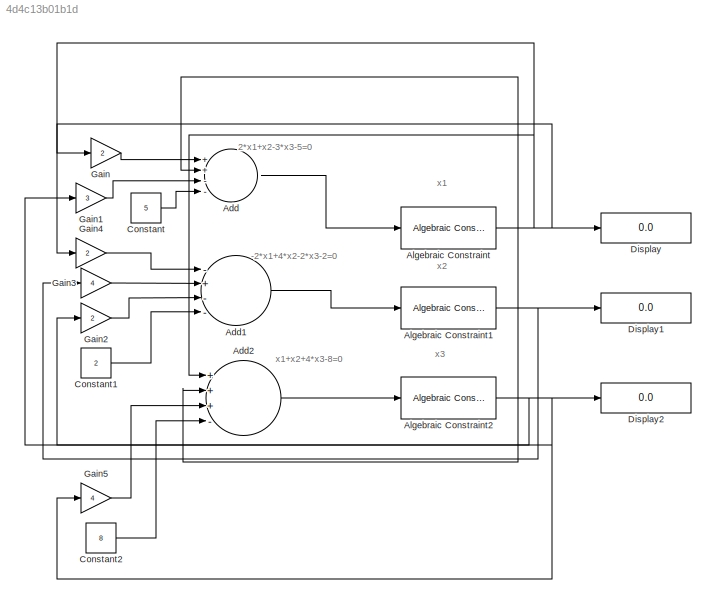
MODEL slx_4d4c13b01b1d
KIND model
CONFIG AbsTol = auto
CONFIG EnableMultiTasking = off
CONFIG FixedStep = auto
CONFIG MaxStep = auto
CONFIG MinStep = auto
CONFIG RelTol = 1e-3
CONFIG SampleTimeConstraint = Unconstrained
CONFIG Solver = VariableStepAuto
CONFIG SolverName = VariableStepAuto
CONFIG StartTime = 0.0
CONFIG StopTime = 10.0
BLOCK [Sum] Add
  InputSameDT = off
  Inputs = ++--
  OutDataTypeStr = Inherit: Inherit via internal rule
  Ports = [4, 1]
  SaturateOnIntegerOverflow = off
BLOCK [Sum] Add1
  InputSameDT = off
  Inputs = -+--
  OutDataTypeStr = Inherit: Inherit via internal rule
  Ports = [4, 1]
  SaturateOnIntegerOverflow = off
BLOCK [Sum] Add2
  InputSameDT = off
  Inputs = +++-
  OutDataTypeStr = Inherit: Inherit via internal rule
  Ports = [4, 1]
  SaturateOnIntegerOverflow = off
BLOCK [Reference] Algebraic Constraint  REF=simulink/Math
Operations/Algebraic Constraint
  Ports = [1, 1]
  SourceBlock = simulink/Math\nOperations/Algebraic Constraint
  SourceProductBaseCode = SL
  SourceProductName = Simulink
  SourceType = Algebraic Constraint
BLOCK [Reference] Algebraic Constraint1  REF=simulink/Math
Operations/Algebraic Constraint
  Ports = [1, 1]
  SourceBlock = simulink/Math\nOperations/Algebraic Constraint
  SourceProductBaseCode = SL
  SourceProductName = Simulink
  SourceType = Algebraic Constraint
BLOCK [Reference] Algebraic Constraint2  REF=simulink/Math
Operations/Algebraic Constraint
  Ports = [1, 1]
  SourceBlock = simulink/Math\nOperations/Algebraic Constraint
  SourceProductBaseCode = SL
  SourceProductName = Simulink
  SourceType = Algebraic Constraint
BLOCK [Constant] Constant
  Value = 5
BLOCK [Constant] Constant1
  Value = 2
BLOCK [Constant] Constant2
  Value = 8
BLOCK [Display] Display
  Decimation = 1
  Ports = [1]
BLOCK [Display] Display1
  Decimation = 1
  Ports = [1]
BLOCK [Display] Display2
  Decimation = 1
  Ports = [1]
BLOCK [Gain] Gain
  Gain = 2
  OutDataTypeStr = Inherit: Inherit via internal rule
  ParamDataTypeStr = Inherit: Inherit via internal rule
  SaturateOnIntegerOverflow = off
BLOCK [Gain] Gain1
  Gain = 3
  OutDataTypeStr = Inherit: Inherit via internal rule
  ParamDataTypeStr = Inherit: Inherit via internal rule
  SaturateOnIntegerOverflow = off
BLOCK [Gain] Gain2
  Gain = 2
  OutDataTypeStr = Inherit: Inherit via internal rule
  ParamDataTypeStr = Inherit: Inherit via internal rule
  SaturateOnIntegerOverflow = off
BLOCK [Gain] Gain3
  Gain = 4
  OutDataTypeStr = Inherit: Inherit via internal rule
  ParamDataTypeStr = Inherit: Inherit via internal rule
  SaturateOnIntegerOverflow = off
BLOCK [Gain] Gain4
  Gain = 2
  OutDataTypeStr = Inherit: Inherit via internal rule
  ParamDataTypeStr = Inherit: Inherit via internal rule
  SaturateOnIntegerOverflow = off
BLOCK [Gain] Gain5
  Gain = 4
  OutDataTypeStr = Inherit: Inherit via internal rule
  ParamDataTypeStr = Inherit: Inherit via internal rule
  SaturateOnIntegerOverflow = off
ANNOTATION (root): 2*x1+x2-3*x3-5=0
ANNOTATION (root): -2*x1+4*x2-2*x3-2=0
ANNOTATION (root): x1+x2+4*x3-8=0
ANNOTATION (root): x1
ANNOTATION (root): x2
ANNOTATION (root): x3
LINE Add1:1 -> Algebraic Constraint1:1
LINE Add2:1 -> Algebraic Constraint2:1
LINE Add:1 -> Algebraic Constraint:1
NET Algebraic Constraint1:1 -> Add2:2, Add:2, Display1:1, Gain3:1
NET Algebraic Constraint2:1 -> Display2:1, Gain1:1, Gain2:1, Gain5:1
NET Algebraic Constraint:1 -> Add2:1, Display:1, Gain4:1, Gain:1
LINE Constant1:1 -> Add1:4
LINE Constant2:1 -> Add2:4
LINE Constant:1 -> Add:4
LINE Gain1:1 -> Add:3
LINE Gain2:1 -> Add1:3
LINE Gain3:1 -> Add1:2
LINE Gain4:1 -> Add1:1
LINE Gain5:1 -> Add2:3
LINE Gain:1 -> Add:1
note: NET lines group one-source signal fan-out (src -> all destinations, sorted); 1:1 wires keep LINE
